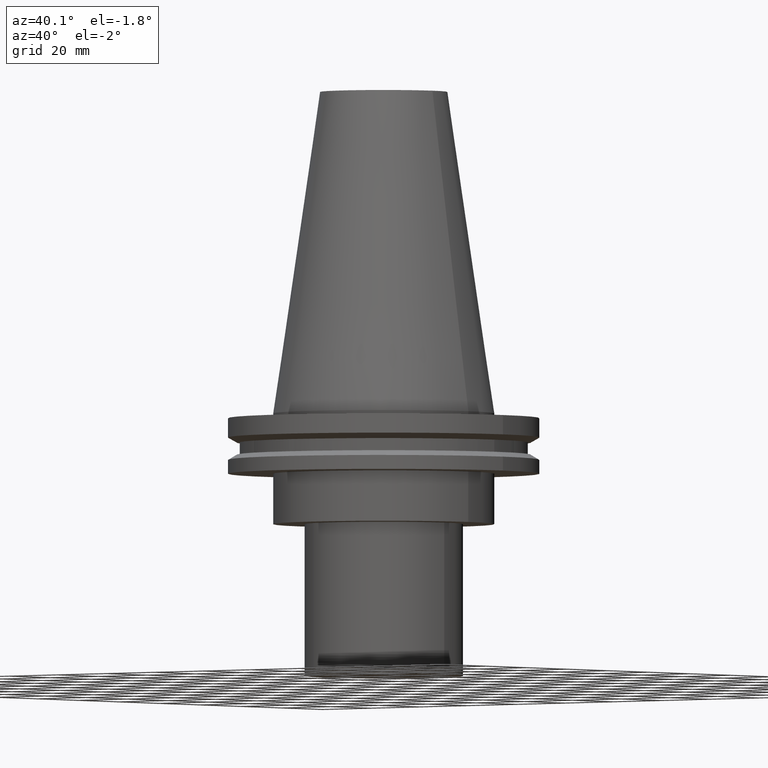
[diagram: clean part render]
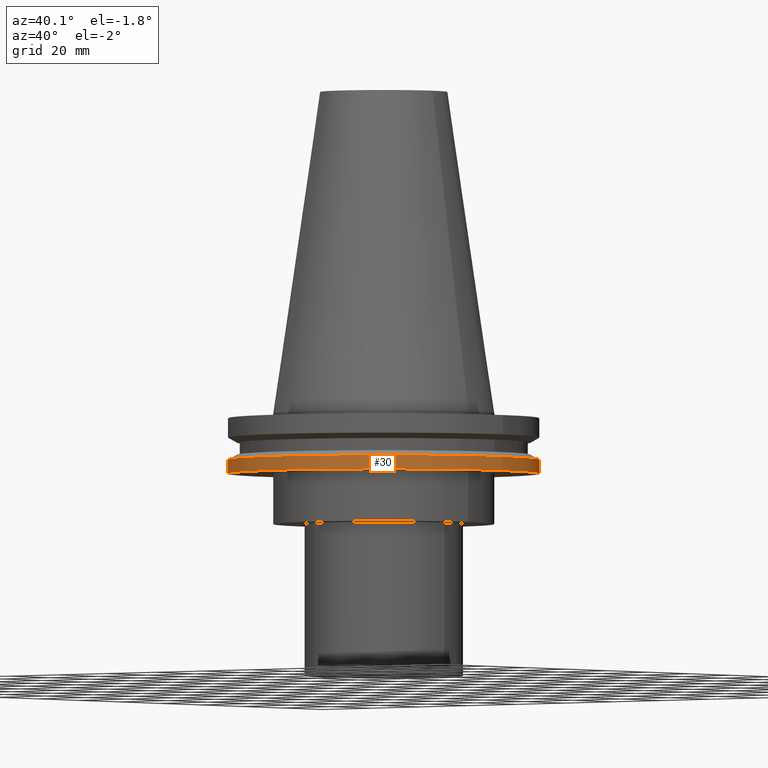
[diagram: same view with one face highlighted and labeled with its STEP entity id]
A machine part, auxiliary view. The second image highlights one B-rep face of the part: STEP entity #30.
In plain terms, the highlighted cylindrical surface (bore or boss wall) has radius 49.215 mm, axis along (-0, -0, 1).
Its self-contained STEP definition (entity closure, byte-faithful):
#5 = FACE_OUTER_BOUND ( 'NONE', #336, .T. ) ;
#19 = EDGE_CURVE ( 'NONE', #390, #390, #351, .T. ) ;
#30 = ADVANCED_FACE ( 'NONE', ( #108, #5 ), #268, .T. ) ;
#31 = CARTESIAN_POINT ( 'NONE',  ( 49.21499999999998920, 0.000000000000000000, -19.04999999999999716 ) ) ;
#51 = DIRECTION ( 'NONE',  ( 1.000000000000000000, 0.000000000000000000, 0.000000000000000000 ) ) ;
#66 = CIRCLE ( 'NONE', #223, 49.21499999999998920 ) ;
#76 = CARTESIAN_POINT ( 'NONE',  ( 49.21499999999998920, 0.000000000000000000, -14.65761014474876944 ) ) ;
#103 = AXIS2_PLACEMENT_3D ( 'NONE', #273, #265, #51 ) ;
#108 = FACE_OUTER_BOUND ( 'NONE', #171, .T. ) ;
#169 = CARTESIAN_POINT ( 'NONE',  ( 0.000000000000000000, 0.000000000000000000, 101.5999999999999943 ) ) ;
#171 = EDGE_LOOP ( 'NONE', ( #394 ) ) ;
#179 = ORIENTED_EDGE ( 'NONE', *, *, #296, .T. ) ;
#182 = DIRECTION ( 'NONE',  ( -0.000000000000000000, -0.000000000000000000, 1.000000000000000000 ) ) ;
#200 = DIRECTION ( 'NONE',  ( -0.000000000000000000, -0.000000000000000000, 1.000000000000000000 ) ) ;
#223 = AXIS2_PLACEMENT_3D ( 'NONE', #358, #200, #305 ) ;
#252 = VERTEX_POINT ( 'NONE', #31 ) ;
#265 = DIRECTION ( 'NONE',  ( -0.000000000000000000, -0.000000000000000000, 1.000000000000000000 ) ) ;
#268 = CYLINDRICAL_SURFACE ( 'NONE', #302, 49.21499999999998920 ) ;
#273 = CARTESIAN_POINT ( 'NONE',  ( 0.000000000000000000, 0.000000000000000000, -14.65761014474876944 ) ) ;
#296 = EDGE_CURVE ( 'NONE', #252, #252, #66, .T. ) ;
#302 = AXIS2_PLACEMENT_3D ( 'NONE', #169, #182, #321 ) ;
#305 = DIRECTION ( 'NONE',  ( 1.000000000000000000, 0.000000000000000000, 0.000000000000000000 ) ) ;
#321 = DIRECTION ( 'NONE',  ( 1.000000000000000000, 0.000000000000000000, 0.000000000000000000 ) ) ;
#336 = EDGE_LOOP ( 'NONE', ( #179 ) ) ;
#351 = CIRCLE ( 'NONE', #103, 49.21499999999998920 ) ;
#358 = CARTESIAN_POINT ( 'NONE',  ( 0.000000000000000000, 0.000000000000000000, -19.04999999999999716 ) ) ;
#390 = VERTEX_POINT ( 'NONE', #76 ) ;
#394 = ORIENTED_EDGE ( 'NONE', *, *, #19, .F. ) ;